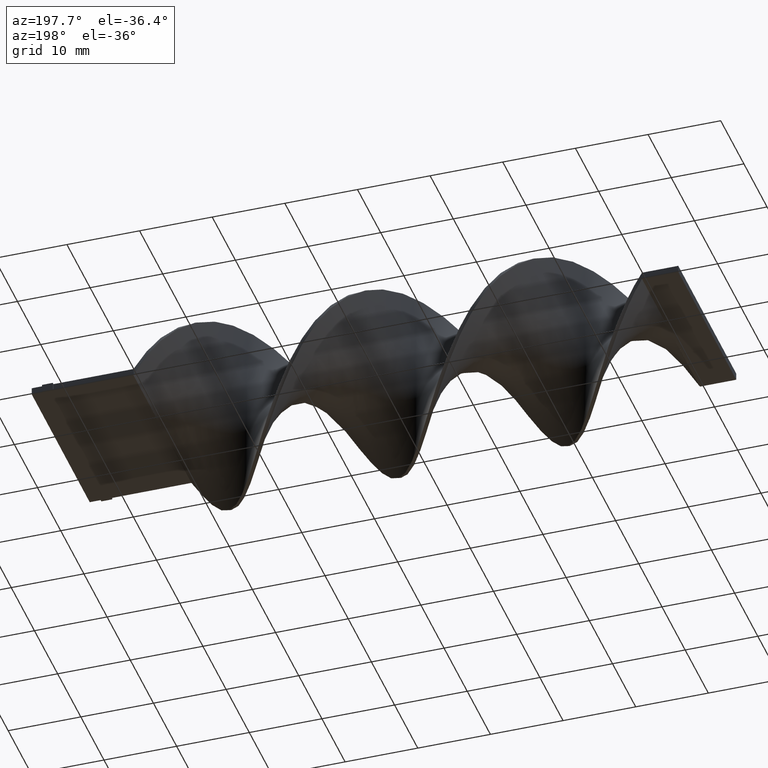
[diagram: clean part render]
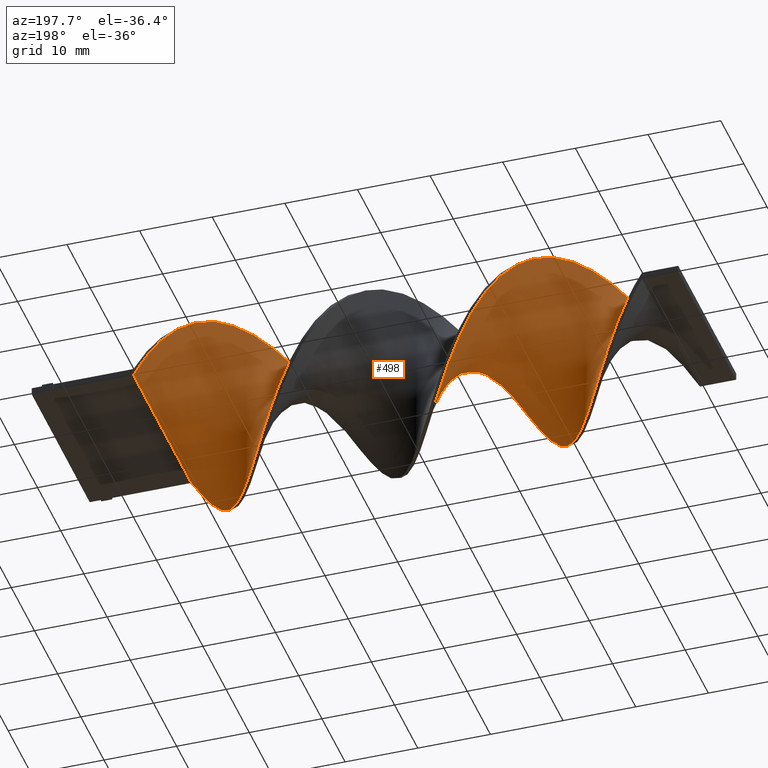
[diagram: same view with one face highlighted and labeled with its STEP entity id]
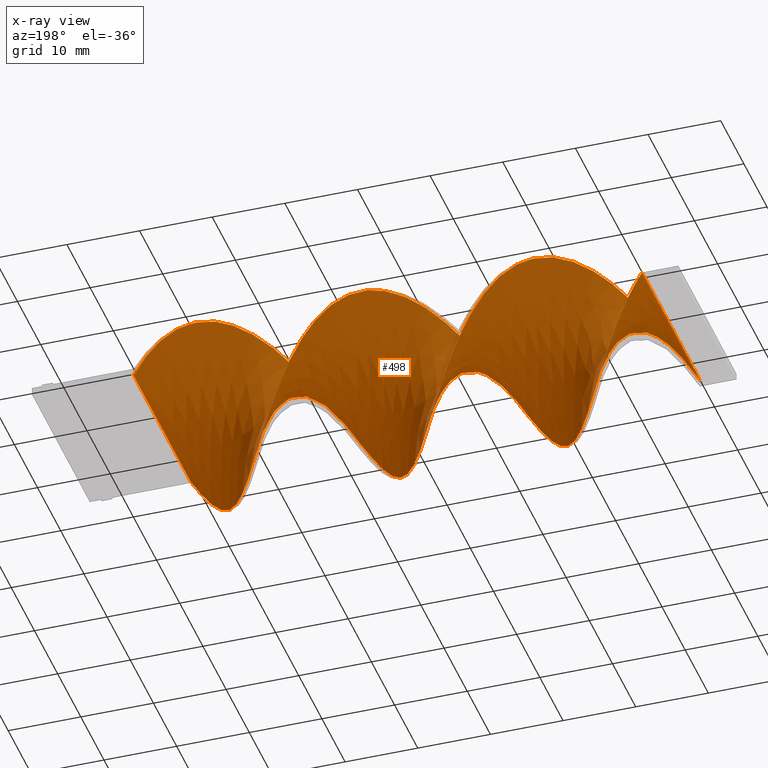
[diagram: x-ray of the same camera — body ghosted, the highlighted face saturated]
A machine part, auxiliary view. The second image highlights one B-rep face of the part: STEP entity #498.
The next image is the same camera in x-ray: the body ghosted, the highlighted face saturated — about 0% of this face is hidden behind the body in this view.
In plain terms, the highlighted face is a freeform B-spline surface patch.
Its self-contained STEP definition (entity closure, byte-faithful):
#1 = CARTESIAN_POINT ( 'NONE',  ( -61.56410256410256920, 12.56071099161113125, 1.017774790278256569 ) ) ;
#4 = CARTESIAN_POINT ( 'NONE',  ( -82.20512820512820440, 12.25643054996942816, -2.505974894881450421 ) ) ;
#9 = CARTESIAN_POINT ( 'NONE',  ( -54.38461538461538680, 7.972909339725115174, -9.759100511780305354 ) ) ;
#11 = CARTESIAN_POINT ( 'NONE',  ( -38.23076923076922640, -12.56071099161113480, -1.017774790278253905 ) ) ;
#14 = CARTESIAN_POINT ( 'NONE',  ( -73.23076923076922640, 2.003062940240561307, -12.34859258609801458 ) ) ;
#17 = CARTESIAN_POINT ( 'NONE',  ( -57.07692307692307310, 10.83583873464323410, -6.251767663373719586 ) ) ;
#20 = CARTESIAN_POINT ( 'NONE',  ( -31.94871794871793824, 9.687945681259156672, -7.914777853924392481 ) ) ;
#21 = CARTESIAN_POINT ( 'NONE',  ( -76.82051282051281760, 7.512301267086272993, -10.00326595030512955 ) ) ;
#24 = CARTESIAN_POINT ( 'NONE',  ( -52.58974358974359120, 5.405725462660103453, -11.38356088229227225 ) ) ;
#36 = EDGE_CURVE ( 'NONE', #1260, #1604, #1366, .T. ) ;
#38 = CARTESIAN_POINT ( 'NONE',  ( -78.61538461538461320, -9.024823023018365475, 8.663288602095494895 ) ) ;
#47 = CARTESIAN_POINT ( 'NONE',  ( -22.07692307692307310, -5.405725462660115888, -11.38356088229227048 ) ) ;
#49 = CARTESIAN_POINT ( 'NONE',  ( -22.07692307692308376, 6.297684876700516909, 10.91542446871784477 ) ) ;
#57 = CARTESIAN_POINT ( 'NONE',  ( -76.82051282051281760, 7.512301267086272993, -10.00326595030512955 ) ) ;
#64 = CARTESIAN_POINT ( 'NONE',  ( -68.74358974358973740, -5.405725462660115888, -11.38356088229227048 ) ) ;
#71 = CARTESIAN_POINT ( 'NONE',  ( -58.87179487179486159, -12.25643054996942993, 2.505974894881457526 ) ) ;
#73 = CARTESIAN_POINT ( 'NONE',  ( -28.35897435897435059, 4.900069209374399826, -11.51040059004641769 ) ) ;
#82 = CARTESIAN_POINT ( 'NONE',  ( -27.46153846153845990, 3.502453542048286739, -12.10537671137499238 ) ) ;
#90 = CARTESIAN_POINT ( 'NONE',  ( -78.61538461538461320, -9.024823023018365475, 8.663288602095494895 ) ) ;
#91 = CARTESIAN_POINT ( 'NONE',  ( -65.15384615384614619, -10.07673670631161045, -7.567476692410683548 ) ) ;
#95 = CARTESIAN_POINT ( 'NONE',  ( -19.38461538461538325, 9.687945681259160224, 7.914777853924387152 ) ) ;
#100 = CARTESIAN_POINT ( 'NONE',  ( -79.51282051282051100, -10.07673670631160867, 7.567476692410685324 ) ) ;
#113 = CARTESIAN_POINT ( 'NONE',  ( -62.46153846153845990, -12.01711488568187214, -3.476916712307497548 ) ) ;
#121 = CARTESIAN_POINT ( 'NONE',  ( -64.25641025641024839, -10.83583873464324299, -6.251767663373711592 ) ) ;
#132 = CARTESIAN_POINT ( 'NONE',  ( -51.69230769230769340, 3.965052966688984881, -11.86500547708895326 ) ) ;
#137 = CARTESIAN_POINT ( 'NONE',  ( -32.84615384615384670, 10.64897370504628604, -6.738448275956369748 ) ) ;
#140 = DIRECTION ( 'NONE',  ( 1.387778780781445676E-16, -1.000000000000000000, 0.000000000000000000 ) ) ;
#142 = CARTESIAN_POINT ( 'NONE',  ( -40.92307692307691980, -11.30056190668700999, -5.366311637720500904 ) ) ;
#152 = CARTESIAN_POINT ( 'NONE',  ( -73.23076923076924061, -1.010354066142510998, 12.46912926635333640 ) ) ;
#166 = CARTESIAN_POINT ( 'NONE',  ( -74.12820512820510999, -2.524380470717864977, 12.34645007188563959 ) ) ;
#170 = CARTESIAN_POINT ( 'NONE',  ( -35.53846153846153300, 12.25643054996942816, -2.505974894881450421 ) ) ;
#176 = CARTESIAN_POINT ( 'NONE',  ( -34.64102564102564230, 11.95215010832772684, -3.994174999484638722 ) ) ;
#177 = CARTESIAN_POINT ( 'NONE',  ( -25.66666666666666785, 0.5036723384328402053, 12.59180846082103855 ) ) ;
#182 = CARTESIAN_POINT ( 'NONE',  ( -78.61538461538461320, 9.687945681259156672, -7.914777853924392481 ) ) ;
#183 = CARTESIAN_POINT ( 'NONE',  ( -57.97435897435897090, -11.95215010832773039, 3.994174999484640498 ) ) ;
#186 = CARTESIAN_POINT ( 'NONE',  ( -58.87179487179486870, 12.01711488568186681, -3.476916712307509094 ) ) ;
#190 = CARTESIAN_POINT ( 'NONE',  ( -64.25641025641024839, -10.83583873464324299, -6.251767663373711592 ) ) ;
#195 = CARTESIAN_POINT ( 'NONE',  ( -17.58974358974358765, 11.30056190668700822, 5.366311637720501793 ) ) ;
#198 = CARTESIAN_POINT ( 'NONE',  ( -60.66666666666665719, -12.50000000000000178, -0.5000000000000000000 ) ) ;
#203 = CARTESIAN_POINT ( 'NONE',  ( -31.05128205128205465, -7.972909339725124944, 9.759100511780301801 ) ) ;
#206 = CARTESIAN_POINT ( 'NONE',  ( -20.28205128205128105, -7.972909339725129385, -9.759100511780298248 ) ) ;
#207 = CARTESIAN_POINT ( 'NONE',  ( -83.10256410256410220, 12.56071099161113125, -1.017774790278262564 ) ) ;
#208 = CARTESIAN_POINT ( 'NONE',  ( -73.23076923076924061, -1.010354066142510998, 12.46912926635333640 ) ) ;
#214 = CARTESIAN_POINT ( 'NONE',  ( -75.92307692307693401, -5.405725462660114999, 11.38356088229226870 ) ) ;
#215 = CARTESIAN_POINT ( 'NONE',  ( -84.00000000000000000, 12.49999999999999822, 0.4999999999999985012 ) ) ;
#221 = CARTESIAN_POINT ( 'NONE',  ( -15.79487179487179205, 12.25643054996942816, 2.505974894881445980 ) ) ;
#223 = CARTESIAN_POINT ( 'NONE',  ( -28.35897435897435059, 4.900069209374399826, -11.51040059004641769 ) ) ;
#226 = CARTESIAN_POINT ( 'NONE',  ( -14.89743589743589602, 12.56071099161113125, 1.017774790278256569 ) ) ;
#229 = CARTESIAN_POINT ( 'NONE',  ( -24.76923076923076650, -1.010354066142515217, -12.46912926635333640 ) ) ;
#230 = CARTESIAN_POINT ( 'NONE',  ( -40.02564102564102200, -11.95215010832773217, -3.994174999484630284 ) ) ;
#231 = CARTESIAN_POINT ( 'NONE',  ( -77.71794871794874382, 8.726917657472030854, -9.091107431892416102 ) ) ;
#235 = CARTESIAN_POINT ( 'NONE',  ( -45.41025641025640880, -6.297684876700524903, -10.91542446871784122 ) ) ;
#237 = CARTESIAN_POINT ( 'NONE',  ( -51.69230769230769340, 3.965052966688984881, -11.86500547708895326 ) ) ;
#239 = CARTESIAN_POINT ( 'NONE',  ( -15.79487179487179205, 12.25643054996942816, 2.505974894881445980 ) ) ;
#241 = CARTESIAN_POINT ( 'NONE',  ( -63.35897435897436480, 11.95215010832772862, 3.994174999484634281 ) ) ;
#249 = CARTESIAN_POINT ( 'NONE',  ( -56.17948717948717530, 10.07673670631160512, -7.567476692410687100 ) ) ;
#251 = CARTESIAN_POINT ( 'NONE',  ( -46.30769230769230660, -4.900069209374408707, -11.51040059004641591 ) ) ;
#258 = CARTESIAN_POINT ( 'NONE',  ( -33.74358974358974450, -10.83583873464324121, 6.251767663373713368 ) ) ;
#265 = CARTESIAN_POINT ( 'NONE',  ( -58.87179487179486870, 12.01711488568186681, -3.476916712307509094 ) ) ;
#266 = CARTESIAN_POINT ( 'NONE',  ( -40.92307692307691980, -11.30056190668700999, -5.366311637720500904 ) ) ;
#272 = CARTESIAN_POINT ( 'NONE',  ( -55.28205128205128460, -9.687945681259160224, 7.914777853924392481 ) ) ;
#274 = CARTESIAN_POINT ( 'NONE',  ( -19.38461538461537970, -9.024823023018369028, -8.663288602095489566 ) ) ;
#283 = CARTESIAN_POINT ( 'NONE',  ( -48.10256410256409509, 1.010354066142515661, 12.46912926635333818 ) ) ;
#286 = CARTESIAN_POINT ( 'NONE',  ( -40.02564102564101489, 11.59494076297487375, 4.936058634336734308 ) ) ;
#291 = CARTESIAN_POINT ( 'NONE',  ( -40.92307692307691980, 10.83583873464323943, 6.251767663373710704 ) ) ;
#294 = CARTESIAN_POINT ( 'NONE',  ( -83.10256410256410220, -12.43928900838887230, 2.017774790278262564 ) ) ;
#296 = CARTESIAN_POINT ( 'NONE',  ( -42.71794871794871540, 9.024823023018367252, 8.663288602095487789 ) ) ;
#298 = CARTESIAN_POINT ( 'NONE',  ( -21.17948717948717530, -6.689317401192623080, -10.57133069703628259 ) ) ;
#299 = CARTESIAN_POINT ( 'NONE',  ( -26.56410256410256210, -1.010354066142510998, 12.46912926635333640 ) ) ;
#303 = CARTESIAN_POINT ( 'NONE',  ( -57.97435897435897090, -11.95215010832773039, 3.994174999484640498 ) ) ;
#306 = CARTESIAN_POINT ( 'NONE',  ( -58.87179487179486159, -12.25643054996942993, 2.505974894881457526 ) ) ;
#314 = CARTESIAN_POINT ( 'NONE',  ( -20.28205128205128460, 8.726917657472036183, 9.091107431892412549 ) ) ;
#316 = CARTESIAN_POINT ( 'NONE',  ( -32.84615384615384670, 10.64897370504628604, -6.738448275956368860 ) ) ;
#334 = CARTESIAN_POINT ( 'NONE',  ( -84.00000000000000000, -12.50000000000000178, 0.5000000000000015543 ) ) ;
#335 = CARTESIAN_POINT ( 'NONE',  ( -70.53846153846153300, -2.524380470717866309, -12.34645007188564136 ) ) ;
#341 = CARTESIAN_POINT ( 'NONE',  ( -27.46153846153845990, 3.502453542048287183, -12.10537671137499238 ) ) ;
#346 = CARTESIAN_POINT ( 'NONE',  ( -72.33333333333332860, 0.5036723384328402053, 12.59180846082103855 ) ) ;
#351 = CARTESIAN_POINT ( 'NONE',  ( -30.15384615384614975, 7.512301267086272993, -10.00326595030512955 ) ) ;
#361 = CARTESIAN_POINT ( 'NONE',  ( -35.53846153846153300, 12.25643054996942816, -2.505974894881450421 ) ) ;
#363 = CARTESIAN_POINT ( 'NONE',  ( -41.82051282051281760, -10.64897370504629315, -6.738448275956367084 ) ) ;
#366 = FACE_OUTER_BOUND ( 'NONE', #1515, .T. ) ;
#369 = CARTESIAN_POINT ( 'NONE',  ( -47.20512820512820440, -3.502453542048290736, -12.10537671137499238 ) ) ;
#370 = CARTESIAN_POINT ( 'NONE',  ( -63.35897435897434349, -11.59494076297487730, -4.936058634336738749 ) ) ;
#375 = CARTESIAN_POINT ( 'NONE',  ( -21.17948717948717885, 7.512301267086275658, 10.00326595030512777 ) ) ;
#381 = CARTESIAN_POINT ( 'NONE',  ( -36.43589743589743080, 12.56071099161113303, -1.017774790278262564 ) ) ;
#395 = CARTESIAN_POINT ( 'NONE',  ( -56.17948717948717530, 10.07673670631160334, -7.567476692410687100 ) ) ;
#402 = CARTESIAN_POINT ( 'NONE',  ( -28.35897435897435770, -3.965052966688987546, 11.86500547708895326 ) ) ;
#404 = CARTESIAN_POINT ( 'NONE',  ( -72.33333333333332860, 0.5036723384328403164, 12.59180846082103855 ) ) ;
#406 = CARTESIAN_POINT ( 'NONE',  ( -37.33333333333332860, -12.50000000000000178, 0.5000000000000015543 ) ) ;
#408 = CARTESIAN_POINT ( 'NONE',  ( -15.79487179487178850, -12.01711488568187214, -3.476916712307497548 ) ) ;
#410 = CARTESIAN_POINT ( 'NONE',  ( -31.94871794871794535, -9.024823023018365475, 8.663288602095494895 ) ) ;
#415 = CARTESIAN_POINT ( 'NONE',  ( -79.51282051282051100, 10.64897370504628604, -6.738448275956369748 ) ) ;
#421 = CARTESIAN_POINT ( 'NONE',  ( -54.38461538461537970, -8.726917657472029077, 9.091107431892417878 ) ) ;
#424 = CARTESIAN_POINT ( 'NONE',  ( -49.00000000000000000, -0.5036723384328410935, 12.59180846082103855 ) ) ;
#427 = CARTESIAN_POINT ( 'NONE',  ( -65.15384615384614619, 10.64897370504628782, 6.738448275956367084 ) ) ;
#429 = CARTESIAN_POINT ( 'NONE',  ( -37.33333333333332860, 12.49999999999999822, 0.4999999999999985012 ) ) ;
#431 = CARTESIAN_POINT ( 'NONE',  ( -26.56410256410255855, 2.003062940240561307, -12.34859258609801458 ) ) ;
#434 = CARTESIAN_POINT ( 'NONE',  ( -66.05128205128204399, 9.687945681259160224, 7.914777853924387152 ) ) ;
#438 = CARTESIAN_POINT ( 'NONE',  ( -56.17948717948717530, -10.64897370504628960, 6.738448275956371525 ) ) ;
#439 = CARTESIAN_POINT ( 'NONE',  ( -84.00000000000000000, 12.49999999999999822, 0.4999999999999985012 ) ) ;
#442 = CARTESIAN_POINT ( 'NONE',  ( -41.82051282051281760, 10.07673670631160689, 7.567476692410682659 ) ) ;
#448 = CARTESIAN_POINT ( 'NONE',  ( -83.10256410256410220, 12.56071099161113303, -1.017774790278262564 ) ) ;
#451 = CARTESIAN_POINT ( 'NONE',  ( -67.84615384615385381, -6.689317401192623080, -10.57133069703628259 ) ) ;
#462 = CARTESIAN_POINT ( 'NONE',  ( -81.30769230769233502, -11.59494076297487553, 4.936058634336743189 ) ) ;
#463 = CARTESIAN_POINT ( 'NONE',  ( -67.84615384615385381, -6.689317401192623080, -10.57133069703628259 ) ) ;
#465 = CARTESIAN_POINT ( 'NONE',  ( -75.02564102564102200, 4.900069209374399826, -11.51040059004641769 ) ) ;
#471 = CARTESIAN_POINT ( 'NONE',  ( -68.74358974358973740, -5.405725462660116776, -11.38356088229226870 ) ) ;
#478 = CARTESIAN_POINT ( 'NONE',  ( -21.17948717948717885, 7.512301267086275658, 10.00326595030512777 ) ) ;
#481 = CARTESIAN_POINT ( 'NONE',  ( -82.20512820512820440, -12.01711488568187214, 3.476916712307501989 ) ) ;
#484 = CARTESIAN_POINT ( 'NONE',  ( -70.53846153846153300, 3.502453542048288071, 12.10537671137499238 ) ) ;
#490 = CARTESIAN_POINT ( 'NONE',  ( -33.74358974358974450, -10.83583873464324121, 6.251767663373713368 ) ) ;
#498 = ADVANCED_FACE ( 'NONE', ( #366 ), #1018, .T. ) ;
#510 = CARTESIAN_POINT ( 'NONE',  ( -42.71794871794872250, -9.687945681259165553, -7.914777853924385376 ) ) ;
#516 = CARTESIAN_POINT ( 'NONE',  ( -39.12820512820512420, -12.25643054996943171, -2.505974894881441539 ) ) ;
#518 = CARTESIAN_POINT ( 'NONE',  ( -77.71794871794872961, 8.726917657472030854, -9.091107431892414326 ) ) ;
#525 = CARTESIAN_POINT ( 'NONE',  ( -47.20512820512820440, -3.502453542048290736, -12.10537671137499238 ) ) ;
#530 = CARTESIAN_POINT ( 'NONE',  ( -29.25641025641025905, -5.405725462660114999, 11.38356088229226870 ) ) ;
#533 = CARTESIAN_POINT ( 'NONE',  ( -43.61538461538461320, -8.726917657472041512, -9.091107431892407220 ) ) ;
#535 = CARTESIAN_POINT ( 'NONE',  ( -34.64102564102564230, 11.95215010832772684, -3.994174999484638722 ) ) ;
#544 = VERTEX_POINT ( 'NONE', #1543 ) ;
#547 = CARTESIAN_POINT ( 'NONE',  ( -52.58974358974358410, 5.405725462660103453, -11.38356088229227048 ) ) ;
#551 = CARTESIAN_POINT ( 'NONE',  ( -51.69230769230769340, -4.900069209374404267, 11.51040059004641769 ) ) ;
#554 = CARTESIAN_POINT ( 'NONE',  ( -23.87179487179487580, 3.502453542048288071, 12.10537671137499238 ) ) ;
#561 = CARTESIAN_POINT ( 'NONE',  ( -29.25641025641025550, 6.297684876700515133, -10.91542446871784655 ) ) ;
#564 = CARTESIAN_POINT ( 'NONE',  ( -40.92307692307691980, 10.83583873464323943, 6.251767663373710704 ) ) ;
#566 = CARTESIAN_POINT ( 'NONE',  ( -69.64102564102563520, -3.965052966688991098, -11.86500547708895148 ) ) ;
#576 = CARTESIAN_POINT ( 'NONE',  ( -62.46153846153845990, -12.01711488568187214, -3.476916712307497548 ) ) ;
#582 = CARTESIAN_POINT ( 'NONE',  ( -70.53846153846153300, -2.524380470717866309, -12.34645007188563959 ) ) ;
#586 = CARTESIAN_POINT ( 'NONE',  ( -22.97435897435897090, 4.900069209374403378, 11.51040059004641591 ) ) ;
#590 = CARTESIAN_POINT ( 'NONE',  ( -66.05128205128204399, -9.024823023018369028, -8.663288602095489566 ) ) ;
#601 = CARTESIAN_POINT ( 'NONE',  ( -18.48717948717948545, -10.07673670631161045, -7.567476692410683548 ) ) ;
#616 = CARTESIAN_POINT ( 'NONE',  ( -65.15384615384614619, 10.64897370504628782, 6.738448275956367972 ) ) ;
#619 = CARTESIAN_POINT ( 'NONE',  ( -62.46153846153845990, 12.25643054996942816, 2.505974894881445980 ) ) ;
#622 = CARTESIAN_POINT ( 'NONE',  ( -84.00000000000000000, -12.50000000000000178, 0.5000000000000015543 ) ) ;
#627 = CARTESIAN_POINT ( 'NONE',  ( -55.28205128205128460, 9.024823023018360146, -8.663288602095494895 ) ) ;
#633 =( BOUNDED_CURVE ( )  B_SPLINE_CURVE ( 2, ( #1030, #1525, #408, #919, #906, #1398, #274, #1415, #298, #47, #1561, #680, #1166, #1081, #431, #82, #73, #561, #1444, #953, #1407, #316, #1060, #176, #170, #817, #1288, #1545, #944, #937, #291, #442, #1052, #805, #1178, #1320, #1304, #1421, #283, #424, #834, #1313, #551, #1072, #1551, #1569, #1435, #1044, #929, #183, #306, #711, #198, #827, #576, #689, #190, #697, #1294, #1195, #451, #64, #566, #582, #702, #1578, #1187, #1171, #465, #801, #57, #231, #1339, #754, #1111, #984, #4, #207, #215 ),
 .UNSPECIFIED., .F., .T. ) 
 B_SPLINE_CURVE_WITH_KNOTS ( ( 3, 2, 2, 2, 2, 2, 2, 2, 2, 2, 2, 2, 2, 2, 2, 2, 2, 2, 2, 2, 2, 2, 2, 2, 2, 2, 2, 2, 2, 2, 2, 2, 2, 2, 2, 2, 2, 2, 2, 3 ),
 ( 0.000000000000000000, 0.01923076923076923184, 0.03846153846153846367, 0.05769230769230768857, 0.07692307692307692735, 0.09615384615384615918, 0.1153846153846153771, 0.1346153846153846090, 0.1538461538461538547, 0.1730769230769230449, 0.1923076923076923184, 0.2115384615384615363, 0.2307692307692307543, 0.2500000000000000000, 0.2692307692307692180, 0.2884615384615384359, 0.3076923076923077094, 0.3269230769230769273, 0.3461538461538460898, 0.3653846153846153633, 0.3846153846153846367, 0.4038461538461539102, 0.4230769230769230727, 0.4423076923076922906, 0.4615384615384615086, 0.4807692307692307820, 0.5000000000000000000, 0.5192307692307692735, 0.5384615384615384359, 0.5576923076923077094, 0.5769230769230768718, 0.5961538461538461453, 0.6153846153846154188, 0.6346153846153845812, 0.6538461538461538547, 0.6730769230769230171, 0.6923076923076921796, 0.7115384615384615641, 0.7307692307692307265, 0.7500000000000000000 ),
 .UNSPECIFIED. ) 
 CURVE ( )  GEOMETRIC_REPRESENTATION_ITEM ( )  RATIONAL_B_SPLINE_CURVE ( ( 1.000000000000000000, 0.9927088740980539727, 1.000000000000000000, 0.9927088740980539727, 1.000000000000000000, 0.9927088740980539727, 1.000000000000000000, 0.9927088740980539727, 1.000000000000000000, 0.9927088740980539727, 1.000000000000000000, 0.9927088740980539727, 1.000000000000000000, 0.9927088740980539727, 1.000000000000000000, 0.9927088740980539727, 1.000000000000000000, 0.9927088740980539727, 1.000000000000000000, 0.9927088740980539727, 1.000000000000000000, 0.9927088740980539727, 1.000000000000000000, 0.9927088740980539727, 1.000000000000000000, 0.9927088740980539727, 1.000000000000000000, 0.9927088740980539727, 1.000000000000000000, 0.9927088740980539727, 1.000000000000000000, 0.9927088740980539727, 1.000000000000000000, 0.9927088740980539727, 1.000000000000000000, 0.9927088740980539727, 1.000000000000000000, 0.9927088740980539727, 1.000000000000000000, 0.9927088740980539727, 1.000000000000000000, 0.9927088740980539727, 1.000000000000000000, 0.9927088740980539727, 1.000000000000000000, 0.9927088740980539727, 1.000000000000000000, 0.9927088740980539727, 1.000000000000000000, 0.9927088740980539727, 1.000000000000000000, 0.9927088740980539727, 1.000000000000000000, 0.9927088740980539727, 1.000000000000000000, 0.9927088740980539727, 1.000000000000000000, 0.9927088740980539727, 1.000000000000000000, 0.9927088740980539727, 1.000000000000000000, 0.9927088740980539727, 1.000000000000000000, 0.9927088740980539727, 1.000000000000000000, 0.9927088740980539727, 1.000000000000000000, 0.9927088740980539727, 1.000000000000000000, 0.9927088740980539727, 1.000000000000000000, 0.9927088740980539727, 1.000000000000000000, 0.9927088740980539727, 1.000000000000000000, 0.9927088740980539727, 1.000000000000000000, 0.9927088740980539727, 1.000000000000000000 ) ) 
 REPRESENTATION_ITEM ( '' )  );
#635 = CARTESIAN_POINT ( 'NONE',  ( -18.48717948717948545, 10.64897370504628782, 6.738448275956367972 ) ) ;
#650 = CARTESIAN_POINT ( 'NONE',  ( -50.79487179487178850, 2.524380470717856983, -12.34645007188563959 ) ) ;
#651 = CARTESIAN_POINT ( 'NONE',  ( -38.23076923076922640, -12.56071099161113658, -1.017774790278253905 ) ) ;
#660 = CARTESIAN_POINT ( 'NONE',  ( -75.92307692307691980, -5.405725462660114111, 11.38356088229227048 ) ) ;
#662 = CARTESIAN_POINT ( 'NONE',  ( -44.51282051282051100, -7.512301267086279211, -10.00326595030512777 ) ) ;
#669 = CARTESIAN_POINT ( 'NONE',  ( -47.20512820512820440, 2.524380470717861868, 12.34645007188564136 ) ) ;
#676 = CARTESIAN_POINT ( 'NONE',  ( -84.00000000000000000, -12.50000000000000178, 0.5000000000000015543 ) ) ;
#678 = CARTESIAN_POINT ( 'NONE',  ( -44.51282051282050389, 6.689317401192619528, 10.57133069703628259 ) ) ;
#680 = CARTESIAN_POINT ( 'NONE',  ( -23.87179487179487225, -2.524380470717866309, -12.34645007188563959 ) ) ;
#684 = CARTESIAN_POINT ( 'NONE',  ( -80.41025641025640880, -10.83583873464324121, 6.251767663373713368 ) ) ;
#685 = CARTESIAN_POINT ( 'NONE',  ( -49.00000000000000711, -0.5036723384328410935, 12.59180846082103855 ) ) ;
#689 = CARTESIAN_POINT ( 'NONE',  ( -63.35897435897435059, -11.59494076297487730, -4.936058634336738749 ) ) ;
#694 = CARTESIAN_POINT ( 'NONE',  ( -13.99999999999999467, -12.50000000000000178, -0.5000000000000000000 ) ) ;
#695 = CARTESIAN_POINT ( 'NONE',  ( -39.12820512820512420, 12.01711488568187214, 3.476916712307494439 ) ) ;
#697 = CARTESIAN_POINT ( 'NONE',  ( -65.15384615384614619, -10.07673670631160867, -7.567476692410683548 ) ) ;
#702 = CARTESIAN_POINT ( 'NONE',  ( -71.43589743589743080, -1.010354066142515217, -12.46912926635333640 ) ) ;
#705 = CARTESIAN_POINT ( 'NONE',  ( -25.66666666666666785, 0.5036723384328403164, 12.59180846082103855 ) ) ;
#709 = CARTESIAN_POINT ( 'NONE',  ( -83.10256410256410220, -12.43928900838887230, 2.017774790278262564 ) ) ;
#711 = CARTESIAN_POINT ( 'NONE',  ( -59.76923076923076650, -12.56071099161113480, 1.017774790278263897 ) ) ;
#725 = CARTESIAN_POINT ( 'NONE',  ( -84.00000000000000000, -12.50000000000000178, 0.5000000000000015543 ) ) ;
#731 = CARTESIAN_POINT ( 'NONE',  ( -18.48717948717948545, 10.64897370504628782, 6.738448275956367084 ) ) ;
#733 = CARTESIAN_POINT ( 'NONE',  ( -29.25641025641025550, 6.297684876700515133, -10.91542446871784477 ) ) ;
#742 = CARTESIAN_POINT ( 'NONE',  ( -16.69230769230769340, 11.95215010832772862, 3.994174999484634281 ) ) ;
#744 = CARTESIAN_POINT ( 'NONE',  ( -17.58974358974358410, -10.83583873464324299, -6.251767663373711592 ) ) ;
#745 = CARTESIAN_POINT ( 'NONE',  ( -42.71794871794872250, -9.687945681259165553, -7.914777853924385376 ) ) ;
#751 = CARTESIAN_POINT ( 'NONE',  ( -49.89743589743589069, 1.010354066142500118, -12.46912926635333818 ) ) ;
#754 = CARTESIAN_POINT ( 'NONE',  ( -79.51282051282051100, 10.64897370504628604, -6.738448275956368860 ) ) ;
#758 = CARTESIAN_POINT ( 'NONE',  ( -57.07692307692307310, 10.83583873464323410, -6.251767663373719586 ) ) ;
#768 = ORIENTED_EDGE ( 'NONE', *, *, #1524, .T. ) ;
#770 = CARTESIAN_POINT ( 'NONE',  ( -74.12820512820512420, 3.502453542048287183, -12.10537671137499238 ) ) ;
#772 = CARTESIAN_POINT ( 'NONE',  ( -13.99999999999999822, 12.49999999999999822, -0.5000000000000000000 ) ) ;
#775 = CARTESIAN_POINT ( 'NONE',  ( -37.33333333333332860, -12.50000000000000178, 0.5000000000000015543 ) ) ;
#783 = CARTESIAN_POINT ( 'NONE',  ( -39.12820512820512420, -12.25643054996943171, -2.505974894881441539 ) ) ;
#796 = CARTESIAN_POINT ( 'NONE',  ( -61.56410256410256920, 12.56071099161113303, 1.017774790278256791 ) ) ;
#801 = CARTESIAN_POINT ( 'NONE',  ( -75.92307692307690559, 6.297684876700515133, -10.91542446871784655 ) ) ;
#805 = CARTESIAN_POINT ( 'NONE',  ( -43.61538461538461320, 7.972909339725128497, 9.759100511780294696 ) ) ;
#807 = CARTESIAN_POINT ( 'NONE',  ( -62.46153846153845990, 12.25643054996942816, 2.505974894881445980 ) ) ;
#812 = CARTESIAN_POINT ( 'NONE',  ( -52.58974358974357699, -6.297684876700514245, 10.91542446871784477 ) ) ;
#817 = CARTESIAN_POINT ( 'NONE',  ( -36.43589743589743080, 12.56071099161113125, -1.017774790278262564 ) ) ;
#821 = CARTESIAN_POINT ( 'NONE',  ( -27.46153846153846345, -2.524380470717864977, 12.34645007188564136 ) ) ;
#824 = CARTESIAN_POINT ( 'NONE',  ( -70.53846153846153300, 3.502453542048288071, 12.10537671137499238 ) ) ;
#827 = CARTESIAN_POINT ( 'NONE',  ( -61.56410256410256920, -12.43928900838887230, -2.017774790278256791 ) ) ;
#834 = CARTESIAN_POINT ( 'NONE',  ( -49.89743589743589069, -2.003062940240558198, 12.34859258609801635 ) ) ;
#842 = CARTESIAN_POINT ( 'NONE',  ( -29.25641025641025905, -5.405725462660114111, 11.38356088229227048 ) ) ;
#843 = CARTESIAN_POINT ( 'NONE',  ( -16.69230769230769340, -11.59494076297487730, -4.936058634336738749 ) ) ;
#849 = CARTESIAN_POINT ( 'NONE',  ( -24.76923076923076650, 2.003062940240565304, 12.34859258609801458 ) ) ;
#853 = ORIENTED_EDGE ( 'NONE', *, *, #1579, .F. ) ;
#854 = CARTESIAN_POINT ( 'NONE',  ( -15.79487179487178850, -12.01711488568187214, -3.476916712307497548 ) ) ;
#855 = CARTESIAN_POINT ( 'NONE',  ( -66.94871794871792758, -7.972909339725129385, -9.759100511780298248 ) ) ;
#859 = CARTESIAN_POINT ( 'NONE',  ( -66.94871794871794179, 8.726917657472036183, 9.091107431892410773 ) ) ;
#867 = CARTESIAN_POINT ( 'NONE',  ( -31.05128205128205465, 8.726917657472030854, -9.091107431892414326 ) ) ;
#875 = CARTESIAN_POINT ( 'NONE',  ( -36.43589743589743790, -12.43928900838887230, 2.017774790278262564 ) ) ;
#878 = B_SPLINE_CURVE_WITH_KNOTS ( 'NONE', 3,
 ( #725, #1453, #1233, #1205 ),
 .UNSPECIFIED., .F., .F.,
 ( 4, 4 ),
 ( 0.000000000000000000, 1.000000000000000000 ),
 .UNSPECIFIED. ) ;
#879 = ORIENTED_EDGE ( 'NONE', *, *, #1536, .T. ) ;
#881 = CARTESIAN_POINT ( 'NONE',  ( -45.41025641025640880, -6.297684876700524903, -10.91542446871784122 ) ) ;
#884 = CARTESIAN_POINT ( 'NONE',  ( -13.99999999999999822, 12.49999999999999822, -0.5000000000000000000 ) ) ;
#886 = CARTESIAN_POINT ( 'NONE',  ( -59.76923076923076650, 12.43928900838886875, -2.017774790278263897 ) ) ;
#906 = CARTESIAN_POINT ( 'NONE',  ( -17.58974358974358410, -10.83583873464324299, -6.251767663373711592 ) ) ;
#908 = CARTESIAN_POINT ( 'NONE',  ( -40.02564102564102200, -11.95215010832773217, -3.994174999484630284 ) ) ;
#911 = CARTESIAN_POINT ( 'NONE',  ( -33.74358974358973740, 11.30056190668700644, -5.366311637720503569 ) ) ;
#917 = CARTESIAN_POINT ( 'NONE',  ( -36.43589743589743790, -12.43928900838887230, 2.017774790278262564 ) ) ;
#919 = CARTESIAN_POINT ( 'NONE',  ( -16.69230769230768985, -11.59494076297487730, -4.936058634336738749 ) ) ;
#921 = CARTESIAN_POINT ( 'NONE',  ( -80.41025641025640880, 11.30056190668700644, -5.366311637720503569 ) ) ;
#929 = CARTESIAN_POINT ( 'NONE',  ( -57.07692307692306599, -11.30056190668700644, 5.366311637720509786 ) ) ;
#937 = CARTESIAN_POINT ( 'NONE',  ( -40.02564102564101489, 11.59494076297487375, 4.936058634336734308 ) ) ;
#944 = CARTESIAN_POINT ( 'NONE',  ( -39.12820512820512420, 12.01711488568187214, 3.476916712307494439 ) ) ;
#947 = CARTESIAN_POINT ( 'NONE',  ( -71.43589743589743080, 2.003062940240565304, 12.34859258609801458 ) ) ;
#950 = VERTEX_POINT ( 'NONE', #694 ) ;
#953 = CARTESIAN_POINT ( 'NONE',  ( -31.05128205128205110, 8.726917657472030854, -9.091107431892416102 ) ) ;
#959 = CARTESIAN_POINT ( 'NONE',  ( -66.05128205128204399, 9.687945681259160224, 7.914777853924387152 ) ) ;
#971 = CARTESIAN_POINT ( 'NONE',  ( -23.87179487179487580, 3.502453542048288071, 12.10537671137499238 ) ) ;
#976 = CARTESIAN_POINT ( 'NONE',  ( -68.74358974358973740, 6.297684876700516909, 10.91542446871784477 ) ) ;
#983 = CARTESIAN_POINT ( 'NONE',  ( -23.87179487179487225, -2.524380470717866309, -12.34645007188564136 ) ) ;
#984 = CARTESIAN_POINT ( 'NONE',  ( -81.30769230769232081, 11.95215010832772684, -3.994174999484638722 ) ) ;
#1000 = CARTESIAN_POINT ( 'NONE',  ( -19.38461538461538325, 9.687945681259160224, 7.914777853924387152 ) ) ;
#1003 = CARTESIAN_POINT ( 'NONE',  ( -31.94871794871794535, -9.024823023018365475, 8.663288602095494895 ) ) ;
#1015 = CARTESIAN_POINT ( 'NONE',  ( -53.48717948717948900, 6.689317401192615087, -10.57133069703628614 ) ) ;
#1017 = CARTESIAN_POINT ( 'NONE',  ( -48.10256410256410220, -2.003062940240573742, -12.34859258609801280 ) ) ;
#1018 =( BOUNDED_SURFACE ( )  B_SPLINE_SURFACE ( 1, 2, ( 
 ( #884, #1371, #239, #1120, #1242, #635, #1000, #1499, #375, #49, #1289, #554, #1527, #177, #299, #821, #402, #530, #1393, #1271, #410, #1570, #490, #1487, #1139, #917, #406, #651, #783, #230, #266, #363, #745, #533, #662, #881, #1597, #525, #1017, #1232, #1472, #1368, #237, #547, #1500, #9, #1376, #249, #17, #1063, #186, #1272, #1399, #796, #807, #1161, #1090, #616, #959, #859, #1343, #976, #1099, #484, #947, #346, #208, #1351, #1079, #214, #1577, #1214, #90, #100, #1586, #462, #481, #709, #334 ),
 ( #1452, #1231, #854, #843, #744, #601, #1348, #206, #1110, #1359, #1096, #983, #229, #1471, #1479, #341, #223, #733, #351, #867, #20, #137, #911, #535, #361, #381, #429, #1411, #695, #286, #564, #1029, #296, #1285, #678, #1278, #1302, #669, #1541, #685, #1533, #1176, #1184, #812, #1557, #421, #272, #438, #1430, #303, #71, #1523, #1035, #1389, #113, #370, #121, #91, #590, #855, #463, #471, #1349, #335, #1142, #1152, #14, #770, #1256, #1131, #21, #518, #182, #415, #921, #1442, #1419, #448, #439 ) ),
 .UNSPECIFIED., .F., .F., .F. ) 
 B_SPLINE_SURFACE_WITH_KNOTS ( ( 2, 2 ),
 ( 3, 2, 2, 2, 2, 2, 2, 2, 2, 2, 2, 2, 2, 2, 2, 2, 2, 2, 2, 2, 2, 2, 2, 2, 2, 2, 2, 2, 2, 2, 2, 2, 2, 2, 2, 2, 2, 2, 2, 3 ),
 ( 0.000000000000000000, 1.000000000000000000 ),
 ( 0.000000000000000000, 0.01923076923076923184, 0.03846153846153846367, 0.05769230769230769551, 0.07692307692307692735, 0.09615384615384615918, 0.1153846153846153910, 0.1346153846153846090, 0.1538461538461538547, 0.1730769230769230727, 0.1923076923076923184, 0.2115384615384615363, 0.2307692307692307820, 0.2500000000000000000, 0.2692307692307692180, 0.2884615384615384359, 0.3076923076923077094, 0.3269230769230769273, 0.3461538461538461453, 0.3653846153846153633, 0.3846153846153846367, 0.4038461538461538547, 0.4230769230769230727, 0.4423076923076922906, 0.4615384615384615641, 0.4807692307692307820, 0.5000000000000000000, 0.5192307692307692735, 0.5384615384615384359, 0.5576923076923077094, 0.5769230769230768718, 0.5961538461538461453, 0.6153846153846154188, 0.6346153846153845812, 0.6538461538461538547, 0.6730769230769231282, 0.6923076923076922906, 0.7115384615384615641, 0.7307692307692307265, 0.7500000000000000000 ),
 .UNSPECIFIED. ) 
 GEOMETRIC_REPRESENTATION_ITEM ( )  RATIONAL_B_SPLINE_SURFACE ( (
 ( 1.000000000000000000, 0.9927088740980539727, 1.000000000000000000, 0.9927088740980539727, 1.000000000000000000, 0.9927088740980539727, 1.000000000000000000, 0.9927088740980539727, 1.000000000000000000, 0.9927088740980539727, 1.000000000000000000, 0.9927088740980539727, 1.000000000000000000, 0.9927088740980539727, 1.000000000000000000, 0.9927088740980539727, 1.000000000000000000, 0.9927088740980539727, 1.000000000000000000, 0.9927088740980539727, 1.000000000000000000, 0.9927088740980539727, 1.000000000000000000, 0.9927088740980539727, 1.000000000000000000, 0.9927088740980539727, 1.000000000000000000, 0.9927088740980539727, 1.000000000000000000, 0.9927088740980539727, 1.000000000000000000, 0.9927088740980539727, 1.000000000000000000, 0.9927088740980539727, 1.000000000000000000, 0.9927088740980539727, 1.000000000000000000, 0.9927088740980539727, 1.000000000000000000, 0.9927088740980539727, 1.000000000000000000, 0.9927088740980539727, 1.000000000000000000, 0.9927088740980539727, 1.000000000000000000, 0.9927088740980539727, 1.000000000000000000, 0.9927088740980539727, 1.000000000000000000, 0.9927088740980539727, 1.000000000000000000, 0.9927088740980539727, 1.000000000000000000, 0.9927088740980539727, 1.000000000000000000, 0.9927088740980539727, 1.000000000000000000, 0.9927088740980539727, 1.000000000000000000, 0.9927088740980539727, 1.000000000000000000, 0.9927088740980539727, 1.000000000000000000, 0.9927088740980539727, 1.000000000000000000, 0.9927088740980539727, 1.000000000000000000, 0.9927088740980539727, 1.000000000000000000, 0.9927088740980539727, 1.000000000000000000, 0.9927088740980539727, 1.000000000000000000, 0.9927088740980539727, 1.000000000000000000, 0.9927088740980539727, 1.000000000000000000, 0.9927088740980539727, 1.000000000000000000),
 ( 1.000000000000000000, 0.9927088740980539727, 1.000000000000000000, 0.9927088740980539727, 1.000000000000000000, 0.9927088740980539727, 1.000000000000000000, 0.9927088740980539727, 1.000000000000000000, 0.9927088740980539727, 1.000000000000000000, 0.9927088740980539727, 1.000000000000000000, 0.9927088740980539727, 1.000000000000000000, 0.9927088740980539727, 1.000000000000000000, 0.9927088740980539727, 1.000000000000000000, 0.9927088740980539727, 1.000000000000000000, 0.9927088740980539727, 1.000000000000000000, 0.9927088740980539727, 1.000000000000000000, 0.9927088740980539727, 1.000000000000000000, 0.9927088740980539727, 1.000000000000000000, 0.9927088740980539727, 1.000000000000000000, 0.9927088740980539727, 1.000000000000000000, 0.9927088740980539727, 1.000000000000000000, 0.9927088740980539727, 1.000000000000000000, 0.9927088740980539727, 1.000000000000000000, 0.9927088740980539727, 1.000000000000000000, 0.9927088740980539727, 1.000000000000000000, 0.9927088740980539727, 1.000000000000000000, 0.9927088740980539727, 1.000000000000000000, 0.9927088740980539727, 1.000000000000000000, 0.9927088740980539727, 1.000000000000000000, 0.9927088740980539727, 1.000000000000000000, 0.9927088740980539727, 1.000000000000000000, 0.9927088740980539727, 1.000000000000000000, 0.9927088740980539727, 1.000000000000000000, 0.9927088740980539727, 1.000000000000000000, 0.9927088740980539727, 1.000000000000000000, 0.9927088740980539727, 1.000000000000000000, 0.9927088740980539727, 1.000000000000000000, 0.9927088740980539727, 1.000000000000000000, 0.9927088740980539727, 1.000000000000000000, 0.9927088740980539727, 1.000000000000000000, 0.9927088740980539727, 1.000000000000000000, 0.9927088740980539727, 1.000000000000000000, 0.9927088740980539727, 1.000000000000000000) ) ) 
 REPRESENTATION_ITEM ( '' )  SURFACE ( )  );
#1029 = CARTESIAN_POINT ( 'NONE',  ( -41.82051282051281760, 10.07673670631160867, 7.567476692410682659 ) ) ;
#1030 = CARTESIAN_POINT ( 'NONE',  ( -13.99999999999999467, -12.50000000000000178, -0.5000000000000000000 ) ) ;
#1035 = CARTESIAN_POINT ( 'NONE',  ( -60.66666666666665719, -12.50000000000000178, -0.5000000000000000000 ) ) ;
#1041 = CARTESIAN_POINT ( 'NONE',  ( -69.64102564102564941, 4.900069209374403378, 11.51040059004641591 ) ) ;
#1044 = CARTESIAN_POINT ( 'NONE',  ( -56.17948717948717530, -10.64897370504628960, 6.738448275956370637 ) ) ;
#1047 = CARTESIAN_POINT ( 'NONE',  ( -13.99999999999999822, 12.49999999999999822, -0.5000000000000000000 ) ) ;
#1052 = CARTESIAN_POINT ( 'NONE',  ( -42.71794871794871540, 9.024823023018367252, 8.663288602095487789 ) ) ;
#1060 = CARTESIAN_POINT ( 'NONE',  ( -33.74358974358973740, 11.30056190668700644, -5.366311637720503569 ) ) ;
#1063 = CARTESIAN_POINT ( 'NONE',  ( -57.97435897435897090, 11.59494076297487197, -4.936058634336744966 ) ) ;
#1072 = CARTESIAN_POINT ( 'NONE',  ( -52.58974358974358410, -6.297684876700513357, 10.91542446871784655 ) ) ;
#1079 = CARTESIAN_POINT ( 'NONE',  ( -75.02564102564102200, -3.965052966688987546, 11.86500547708895326 ) ) ;
#1081 = CARTESIAN_POINT ( 'NONE',  ( -25.66666666666666785, 0.5036723384328388731, -12.59180846082103855 ) ) ;
#1090 = CARTESIAN_POINT ( 'NONE',  ( -64.25641025641024839, 11.30056190668700822, 5.366311637720501793 ) ) ;
#1096 = CARTESIAN_POINT ( 'NONE',  ( -22.97435897435896734, -3.965052966688991098, -11.86500547708895148 ) ) ;
#1099 = CARTESIAN_POINT ( 'NONE',  ( -69.64102564102564941, 4.900069209374403378, 11.51040059004641591 ) ) ;
#1110 = CARTESIAN_POINT ( 'NONE',  ( -21.17948717948717530, -6.689317401192623080, -10.57133069703628259 ) ) ;
#1111 = CARTESIAN_POINT ( 'NONE',  ( -80.41025641025640880, 11.30056190668700644, -5.366311637720503569 ) ) ;
#1115 = CARTESIAN_POINT ( 'NONE',  ( -57.97435897435897090, 11.59494076297487197, -4.936058634336744966 ) ) ;
#1120 = CARTESIAN_POINT ( 'NONE',  ( -16.69230769230769695, 11.95215010832772862, 3.994174999484634281 ) ) ;
#1124 = CARTESIAN_POINT ( 'NONE',  ( -34.64102564102564230, -11.59494076297487553, 4.936058634336743189 ) ) ;
#1131 = CARTESIAN_POINT ( 'NONE',  ( -75.92307692307691980, 6.297684876700515133, -10.91542446871784477 ) ) ;
#1139 = CARTESIAN_POINT ( 'NONE',  ( -35.53846153846153300, -12.01711488568187214, 3.476916712307501989 ) ) ;
#1142 = CARTESIAN_POINT ( 'NONE',  ( -71.43589743589743080, -1.010354066142515217, -12.46912926635333640 ) ) ;
#1146 = CARTESIAN_POINT ( 'NONE',  ( -76.82051282051281760, -6.689317401192620416, 10.57133069703628436 ) ) ;
#1152 = CARTESIAN_POINT ( 'NONE',  ( -72.33333333333332860, 0.5036723384328388731, -12.59180846082103855 ) ) ;
#1156 = CARTESIAN_POINT ( 'NONE',  ( -71.43589743589743080, 2.003062940240565304, 12.34859258609801458 ) ) ;
#1161 = CARTESIAN_POINT ( 'NONE',  ( -63.35897435897435770, 11.95215010832772862, 3.994174999484634281 ) ) ;
#1166 = CARTESIAN_POINT ( 'NONE',  ( -24.76923076923076650, -1.010354066142515217, -12.46912926635333640 ) ) ;
#1171 = CARTESIAN_POINT ( 'NONE',  ( -74.12820512820510999, 3.502453542048286739, -12.10537671137499238 ) ) ;
#1174 = CARTESIAN_POINT ( 'NONE',  ( -77.71794871794874382, -7.972909339725124944, 9.759100511780301801 ) ) ;
#1176 = CARTESIAN_POINT ( 'NONE',  ( -50.79487179487178139, -3.502453542048286295, 12.10537671137499238 ) ) ;
#1178 = CARTESIAN_POINT ( 'NONE',  ( -44.51282051282050389, 6.689317401192619528, 10.57133069703628259 ) ) ;
#1184 = CARTESIAN_POINT ( 'NONE',  ( -51.69230769230769340, -4.900069209374404267, 11.51040059004641769 ) ) ;
#1187 = CARTESIAN_POINT ( 'NONE',  ( -73.23076923076922640, 2.003062940240561307, -12.34859258609801458 ) ) ;
#1190 = CARTESIAN_POINT ( 'NONE',  ( -27.46153846153846345, -2.524380470717864977, 12.34645007188563959 ) ) ;
#1195 = CARTESIAN_POINT ( 'NONE',  ( -66.94871794871794179, -7.972909339725130273, -9.759100511780298248 ) ) ;
#1205 = CARTESIAN_POINT ( 'NONE',  ( -84.00000000000000000, 12.49999999999999822, 0.4999999999999985012 ) ) ;
#1214 = CARTESIAN_POINT ( 'NONE',  ( -77.71794871794872961, -7.972909339725124056, 9.759100511780301801 ) ) ;
#1228 = CARTESIAN_POINT ( 'NONE',  ( -22.07692307692308020, 6.297684876700516021, 10.91542446871784655 ) ) ;
#1231 = CARTESIAN_POINT ( 'NONE',  ( -14.89743589743589247, -12.43928900838887230, -2.017774790278256791 ) ) ;
#1232 = CARTESIAN_POINT ( 'NONE',  ( -49.00000000000000711, -0.5036723384328456454, -12.59180846082103855 ) ) ;
#1233 = CARTESIAN_POINT ( 'NONE',  ( -84.00000000000000000, 4.166666666666666075, 0.4999999999999994449 ) ) ;
#1242 = CARTESIAN_POINT ( 'NONE',  ( -17.58974358974358765, 11.30056190668700822, 5.366311637720501793 ) ) ;
#1245 = CARTESIAN_POINT ( 'NONE',  ( -64.25641025641024839, 11.30056190668700822, 5.366311637720501793 ) ) ;
#1253 = CARTESIAN_POINT ( 'NONE',  ( -48.10256410256410220, -2.003062940240573742, -12.34859258609801280 ) ) ;
#1256 = CARTESIAN_POINT ( 'NONE',  ( -75.02564102564102200, 4.900069209374399826, -11.51040059004641769 ) ) ;
#1260 = VERTEX_POINT ( 'NONE', #1047 ) ;
#1265 = CARTESIAN_POINT ( 'NONE',  ( -60.66666666666666430, 12.49999999999999822, -0.5000000000000000000 ) ) ;
#1271 = CARTESIAN_POINT ( 'NONE',  ( -31.05128205128205821, -7.972909339725124056, 9.759100511780301801 ) ) ;
#1272 = CARTESIAN_POINT ( 'NONE',  ( -59.76923076923077360, 12.43928900838886875, -2.017774790278263897 ) ) ;
#1278 = CARTESIAN_POINT ( 'NONE',  ( -45.41025641025640880, 5.405725462660119440, 11.38356088229226515 ) ) ;
#1285 = CARTESIAN_POINT ( 'NONE',  ( -43.61538461538461320, 7.972909339725127609, 9.759100511780294696 ) ) ;
#1288 = CARTESIAN_POINT ( 'NONE',  ( -37.33333333333332860, 12.49999999999999822, 0.4999999999999985012 ) ) ;
#1289 = CARTESIAN_POINT ( 'NONE',  ( -22.97435897435897090, 4.900069209374403378, 11.51040059004641591 ) ) ;
#1294 = CARTESIAN_POINT ( 'NONE',  ( -66.05128205128204399, -9.024823023018369028, -8.663288602095489566 ) ) ;
#1302 = CARTESIAN_POINT ( 'NONE',  ( -46.30769230769229949, 3.965052966688989322, 11.86500547708895148 ) ) ;
#1304 = CARTESIAN_POINT ( 'NONE',  ( -46.30769230769229949, 3.965052966688989322, 11.86500547708895148 ) ) ;
#1313 = CARTESIAN_POINT ( 'NONE',  ( -50.79487179487178139, -3.502453542048285851, 12.10537671137499238 ) ) ;
#1320 = CARTESIAN_POINT ( 'NONE',  ( -45.41025641025640880, 5.405725462660118552, 11.38356088229226515 ) ) ;
#1324 = CARTESIAN_POINT ( 'NONE',  ( -30.15384615384615330, -6.689317401192620416, 10.57133069703628436 ) ) ;
#1339 = CARTESIAN_POINT ( 'NONE',  ( -78.61538461538461320, 9.687945681259156672, -7.914777853924392481 ) ) ;
#1343 = CARTESIAN_POINT ( 'NONE',  ( -67.84615384615385381, 7.512301267086275658, 10.00326595030512777 ) ) ;
#1348 = CARTESIAN_POINT ( 'NONE',  ( -19.38461538461537970, -9.024823023018369028, -8.663288602095489566 ) ) ;
#1349 = CARTESIAN_POINT ( 'NONE',  ( -69.64102564102563520, -3.965052966688991098, -11.86500547708895148 ) ) ;
#1351 = CARTESIAN_POINT ( 'NONE',  ( -74.12820512820512420, -2.524380470717864977, 12.34645007188564136 ) ) ;
#1359 = CARTESIAN_POINT ( 'NONE',  ( -22.07692307692307665, -5.405725462660116776, -11.38356088229226870 ) ) ;
#1364 = CARTESIAN_POINT ( 'NONE',  ( -43.61538461538461320, -8.726917657472041512, -9.091107431892408997 ) ) ;
#1366 =( BOUNDED_CURVE ( )  B_SPLINE_CURVE ( 2, ( #1478, #226, #221, #742, #195, #731, #95, #314, #478, #1228, #586, #971, #849, #705, #1467, #1190, #1450, #842, #1324, #203, #1003, #1382, #258, #1124, #1610, #875, #775, #11, #516, #908, #142, #1485, #510, #1364, #1502, #235, #251, #369, #1253, #1373, #751, #650, #132, #24, #1015, #1514, #627, #395, #758, #1115, #265, #886, #1265, #1, #619, #241, #1245, #427, #434, #1522, #1547, #1426, #1041, #824, #1156, #404, #152, #166, #1539, #660, #1146, #1174, #38, #1529, #684, #1410, #1417, #294, #676 ),
 .UNSPECIFIED., .F., .T. ) 
 B_SPLINE_CURVE_WITH_KNOTS ( ( 3, 2, 2, 2, 2, 2, 2, 2, 2, 2, 2, 2, 2, 2, 2, 2, 2, 2, 2, 2, 2, 2, 2, 2, 2, 2, 2, 2, 2, 2, 2, 2, 2, 2, 2, 2, 2, 2, 2, 3 ),
 ( 0.000000000000000000, 0.01923076923076923184, 0.03846153846153846367, 0.05769230769230768857, 0.07692307692307692735, 0.09615384615384615918, 0.1153846153846153771, 0.1346153846153846090, 0.1538461538461538547, 0.1730769230769230449, 0.1923076923076923184, 0.2115384615384615363, 0.2307692307692307543, 0.2500000000000000000, 0.2692307692307692180, 0.2884615384615384359, 0.3076923076923077094, 0.3269230769230769273, 0.3461538461538460898, 0.3653846153846153633, 0.3846153846153846367, 0.4038461538461539102, 0.4230769230769230727, 0.4423076923076922906, 0.4615384615384615086, 0.4807692307692307820, 0.5000000000000000000, 0.5192307692307692735, 0.5384615384615384359, 0.5576923076923077094, 0.5769230769230768718, 0.5961538461538461453, 0.6153846153846154188, 0.6346153846153845812, 0.6538461538461538547, 0.6730769230769230171, 0.6923076923076921796, 0.7115384615384615641, 0.7307692307692307265, 0.7500000000000000000 ),
 .UNSPECIFIED. ) 
 CURVE ( )  GEOMETRIC_REPRESENTATION_ITEM ( )  RATIONAL_B_SPLINE_CURVE ( ( 1.000000000000000000, 0.9927088740980539727, 1.000000000000000000, 0.9927088740980539727, 1.000000000000000000, 0.9927088740980539727, 1.000000000000000000, 0.9927088740980539727, 1.000000000000000000, 0.9927088740980539727, 1.000000000000000000, 0.9927088740980539727, 1.000000000000000000, 0.9927088740980539727, 1.000000000000000000, 0.9927088740980539727, 1.000000000000000000, 0.9927088740980539727, 1.000000000000000000, 0.9927088740980539727, 1.000000000000000000, 0.9927088740980539727, 1.000000000000000000, 0.9927088740980539727, 1.000000000000000000, 0.9927088740980539727, 1.000000000000000000, 0.9927088740980539727, 1.000000000000000000, 0.9927088740980539727, 1.000000000000000000, 0.9927088740980539727, 1.000000000000000000, 0.9927088740980539727, 1.000000000000000000, 0.9927088740980539727, 1.000000000000000000, 0.9927088740980539727, 1.000000000000000000, 0.9927088740980539727, 1.000000000000000000, 0.9927088740980539727, 1.000000000000000000, 0.9927088740980539727, 1.000000000000000000, 0.9927088740980539727, 1.000000000000000000, 0.9927088740980539727, 1.000000000000000000, 0.9927088740980539727, 1.000000000000000000, 0.9927088740980539727, 1.000000000000000000, 0.9927088740980539727, 1.000000000000000000, 0.9927088740980539727, 1.000000000000000000, 0.9927088740980539727, 1.000000000000000000, 0.9927088740980539727, 1.000000000000000000, 0.9927088740980539727, 1.000000000000000000, 0.9927088740980539727, 1.000000000000000000, 0.9927088740980539727, 1.000000000000000000, 0.9927088740980539727, 1.000000000000000000, 0.9927088740980539727, 1.000000000000000000, 0.9927088740980539727, 1.000000000000000000, 0.9927088740980539727, 1.000000000000000000, 0.9927088740980539727, 1.000000000000000000, 0.9927088740980539727, 1.000000000000000000 ) ) 
 REPRESENTATION_ITEM ( '' )  );
#1368 = CARTESIAN_POINT ( 'NONE',  ( -50.79487179487178850, 2.524380470717857428, -12.34645007188564136 ) ) ;
#1371 = CARTESIAN_POINT ( 'NONE',  ( -14.89743589743589602, 12.56071099161113303, 1.017774790278256791 ) ) ;
#1373 = CARTESIAN_POINT ( 'NONE',  ( -49.00000000000000000, -0.5036723384328456454, -12.59180846082103855 ) ) ;
#1376 = CARTESIAN_POINT ( 'NONE',  ( -55.28205128205128460, 9.024823023018360146, -8.663288602095494895 ) ) ;
#1382 = CARTESIAN_POINT ( 'NONE',  ( -32.84615384615384670, -10.07673670631160689, 7.567476692410685324 ) ) ;
#1389 = CARTESIAN_POINT ( 'NONE',  ( -61.56410256410256920, -12.43928900838887230, -2.017774790278256791 ) ) ;
#1393 = CARTESIAN_POINT ( 'NONE',  ( -30.15384615384615330, -6.689317401192620416, 10.57133069703628436 ) ) ;
#1398 = CARTESIAN_POINT ( 'NONE',  ( -18.48717948717948545, -10.07673670631160867, -7.567476692410683548 ) ) ;
#1399 = CARTESIAN_POINT ( 'NONE',  ( -60.66666666666666430, 12.49999999999999822, -0.5000000000000000000 ) ) ;
#1407 = CARTESIAN_POINT ( 'NONE',  ( -31.94871794871793824, 9.687945681259156672, -7.914777853924392481 ) ) ;
#1410 = CARTESIAN_POINT ( 'NONE',  ( -81.30769230769232081, -11.59494076297487553, 4.936058634336743189 ) ) ;
#1411 = CARTESIAN_POINT ( 'NONE',  ( -38.23076923076921929, 12.43928900838886875, 2.017774790278253683 ) ) ;
#1415 = CARTESIAN_POINT ( 'NONE',  ( -20.28205128205128105, -7.972909339725130273, -9.759100511780298248 ) ) ;
#1417 = CARTESIAN_POINT ( 'NONE',  ( -82.20512820512820440, -12.01711488568187214, 3.476916712307501989 ) ) ;
#1419 = CARTESIAN_POINT ( 'NONE',  ( -82.20512820512820440, 12.25643054996942816, -2.505974894881450421 ) ) ;
#1421 = CARTESIAN_POINT ( 'NONE',  ( -47.20512820512820440, 2.524380470717861868, 12.34645007188563959 ) ) ;
#1426 = CARTESIAN_POINT ( 'NONE',  ( -68.74358974358973740, 6.297684876700516021, 10.91542446871784655 ) ) ;
#1430 = CARTESIAN_POINT ( 'NONE',  ( -57.07692307692306599, -11.30056190668700644, 5.366311637720509786 ) ) ;
#1435 = CARTESIAN_POINT ( 'NONE',  ( -55.28205128205128460, -9.687945681259160224, 7.914777853924392481 ) ) ;
#1442 = CARTESIAN_POINT ( 'NONE',  ( -81.30769230769233502, 11.95215010832772684, -3.994174999484638722 ) ) ;
#1444 = CARTESIAN_POINT ( 'NONE',  ( -30.15384615384614975, 7.512301267086272993, -10.00326595030512955 ) ) ;
#1450 = CARTESIAN_POINT ( 'NONE',  ( -28.35897435897435770, -3.965052966688987546, 11.86500547708895326 ) ) ;
#1452 = CARTESIAN_POINT ( 'NONE',  ( -13.99999999999999467, -12.50000000000000178, -0.5000000000000000000 ) ) ;
#1453 = CARTESIAN_POINT ( 'NONE',  ( -84.00000000000000000, -4.166666666666669627, 0.5000000000000005551 ) ) ;
#1461 = ORIENTED_EDGE ( 'NONE', *, *, #36, .F. ) ;
#1467 = CARTESIAN_POINT ( 'NONE',  ( -26.56410256410256210, -1.010354066142510998, 12.46912926635333640 ) ) ;
#1471 = CARTESIAN_POINT ( 'NONE',  ( -25.66666666666666785, 0.5036723384328388731, -12.59180846082103855 ) ) ;
#1472 = CARTESIAN_POINT ( 'NONE',  ( -49.89743589743589069, 1.010354066142500118, -12.46912926635333818 ) ) ;
#1478 = CARTESIAN_POINT ( 'NONE',  ( -13.99999999999999822, 12.49999999999999822, -0.5000000000000000000 ) ) ;
#1479 = CARTESIAN_POINT ( 'NONE',  ( -26.56410256410255855, 2.003062940240561307, -12.34859258609801458 ) ) ;
#1485 = CARTESIAN_POINT ( 'NONE',  ( -41.82051282051281760, -10.64897370504629315, -6.738448275956366196 ) ) ;
#1487 = CARTESIAN_POINT ( 'NONE',  ( -34.64102564102564230, -11.59494076297487553, 4.936058634336743189 ) ) ;
#1489 = VECTOR ( 'NONE', #140, 1000.000000000000000 ) ;
#1499 = CARTESIAN_POINT ( 'NONE',  ( -20.28205128205128460, 8.726917657472036183, 9.091107431892410773 ) ) ;
#1500 = CARTESIAN_POINT ( 'NONE',  ( -53.48717948717948900, 6.689317401192615087, -10.57133069703628614 ) ) ;
#1502 = CARTESIAN_POINT ( 'NONE',  ( -44.51282051282051100, -7.512301267086279211, -10.00326595030512777 ) ) ;
#1511 = LINE ( 'NONE', #772, #1489 ) ;
#1514 = CARTESIAN_POINT ( 'NONE',  ( -54.38461538461538680, 7.972909339725116062, -9.759100511780305354 ) ) ;
#1515 = EDGE_LOOP ( 'NONE', ( #768, #879, #853, #1461 ) ) ;
#1522 = CARTESIAN_POINT ( 'NONE',  ( -66.94871794871795601, 8.726917657472036183, 9.091107431892412549 ) ) ;
#1523 = CARTESIAN_POINT ( 'NONE',  ( -59.76923076923077360, -12.56071099161113658, 1.017774790278264119 ) ) ;
#1524 = EDGE_CURVE ( 'NONE', #1260, #950, #1511, .T. ) ;
#1525 = CARTESIAN_POINT ( 'NONE',  ( -14.89743589743589247, -12.43928900838887230, -2.017774790278256791 ) ) ;
#1527 = CARTESIAN_POINT ( 'NONE',  ( -24.76923076923076650, 2.003062940240565304, 12.34859258609801458 ) ) ;
#1529 = CARTESIAN_POINT ( 'NONE',  ( -79.51282051282051100, -10.07673670631160689, 7.567476692410685324 ) ) ;
#1533 = CARTESIAN_POINT ( 'NONE',  ( -49.89743589743589069, -2.003062940240558198, 12.34859258609801635 ) ) ;
#1536 = EDGE_CURVE ( 'NONE', #950, #544, #633, .T. ) ;
#1539 = CARTESIAN_POINT ( 'NONE',  ( -75.02564102564102200, -3.965052966688987546, 11.86500547708895326 ) ) ;
#1541 = CARTESIAN_POINT ( 'NONE',  ( -48.10256410256409509, 1.010354066142515661, 12.46912926635333818 ) ) ;
#1543 = CARTESIAN_POINT ( 'NONE',  ( -84.00000000000000000, 12.49999999999999822, 0.4999999999999985012 ) ) ;
#1545 = CARTESIAN_POINT ( 'NONE',  ( -38.23076923076921929, 12.43928900838886875, 2.017774790278253683 ) ) ;
#1547 = CARTESIAN_POINT ( 'NONE',  ( -67.84615384615385381, 7.512301267086275658, 10.00326595030512777 ) ) ;
#1551 = CARTESIAN_POINT ( 'NONE',  ( -53.48717948717948900, -7.512301267086274770, 10.00326595030513133 ) ) ;
#1557 = CARTESIAN_POINT ( 'NONE',  ( -53.48717948717948900, -7.512301267086274770, 10.00326595030513133 ) ) ;
#1561 = CARTESIAN_POINT ( 'NONE',  ( -22.97435897435896734, -3.965052966688991098, -11.86500547708895148 ) ) ;
#1569 = CARTESIAN_POINT ( 'NONE',  ( -54.38461538461537970, -8.726917657472029077, 9.091107431892417878 ) ) ;
#1570 = CARTESIAN_POINT ( 'NONE',  ( -32.84615384615384670, -10.07673670631160867, 7.567476692410685324 ) ) ;
#1577 = CARTESIAN_POINT ( 'NONE',  ( -76.82051282051281760, -6.689317401192620416, 10.57133069703628436 ) ) ;
#1578 = CARTESIAN_POINT ( 'NONE',  ( -72.33333333333332860, 0.5036723384328388731, -12.59180846082103855 ) ) ;
#1579 = EDGE_CURVE ( 'NONE', #1604, #544, #878, .T. ) ;
#1586 = CARTESIAN_POINT ( 'NONE',  ( -80.41025641025640880, -10.83583873464324121, 6.251767663373713368 ) ) ;
#1597 = CARTESIAN_POINT ( 'NONE',  ( -46.30769230769230660, -4.900069209374408707, -11.51040059004641591 ) ) ;
#1604 = VERTEX_POINT ( 'NONE', #622 ) ;
#1610 = CARTESIAN_POINT ( 'NONE',  ( -35.53846153846153300, -12.01711488568187214, 3.476916712307501989 ) ) ;